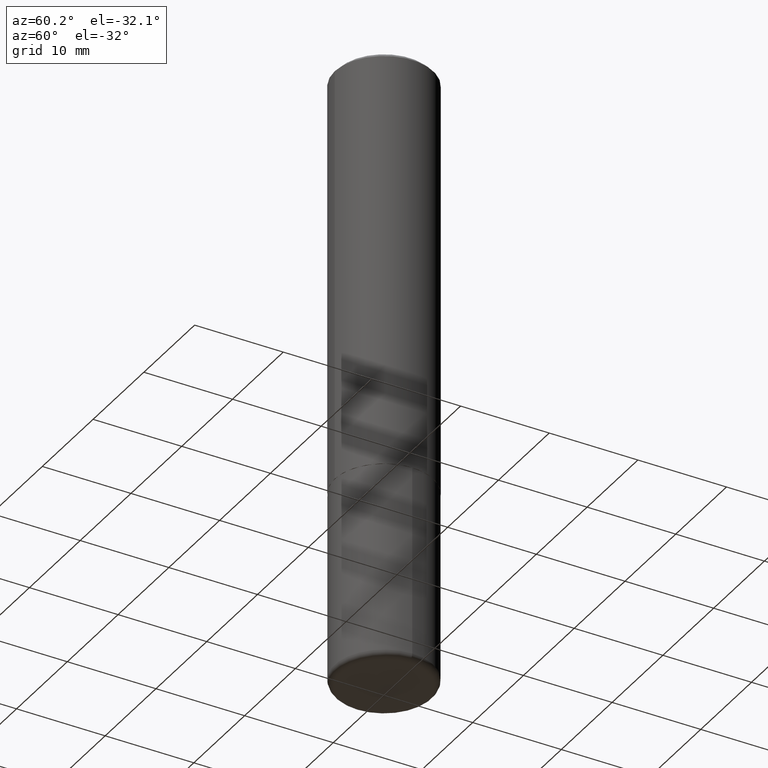
[diagram: clean part render]
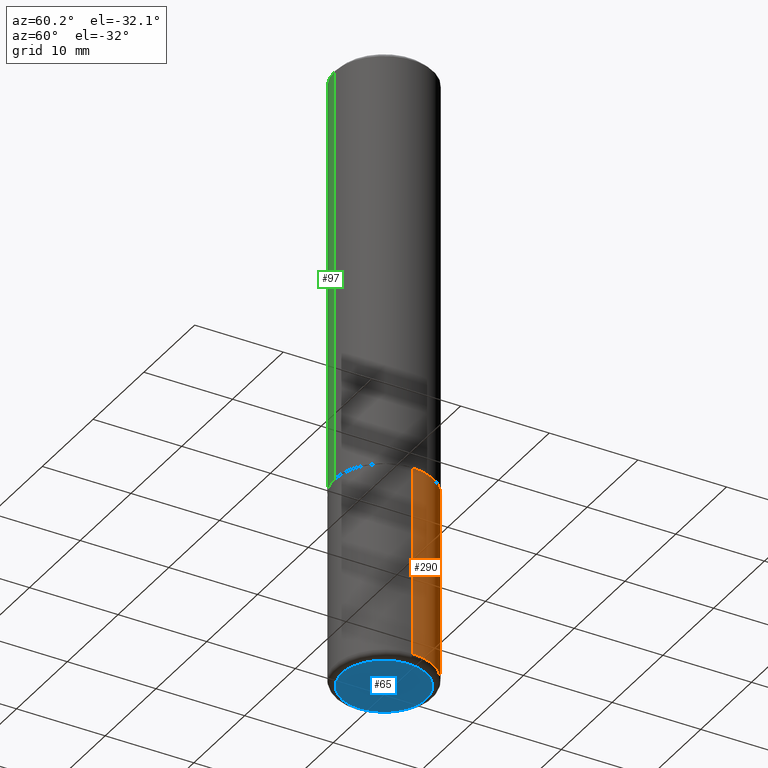
[diagram: same view with three faces highlighted in distinct colors, each labeled with its STEP entity id]
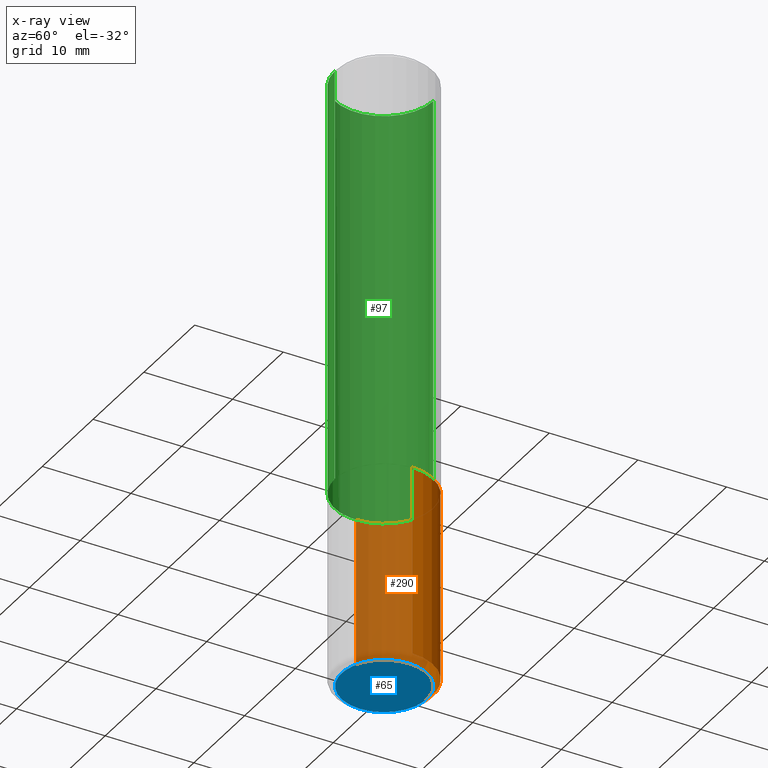
[diagram: x-ray of the same camera — body ghosted, the three highlighted faces saturated]
A machine part, auxiliary view with three faces highlighted in distinct colors.
The next image is the same camera in x-ray (body ghosted, the three faces saturated) — at least one of them is partly hidden behind the body in this view.
Their STEP definitions:

[orange] entity #290 — the highlighted cylindrical surface (partial cylindrical patch) has radius 5.5563 mm, axis along (-0, 0, 1).
#8 = EDGE_CURVE ( 'NONE', #292, #326, #172, .T. ) ;
#14 = VERTEX_POINT ( 'NONE', #371 ) ;
#38 = CARTESIAN_POINT ( 'NONE',  ( -0.2187500000000000000, -6.467366141516908442E-15, -1.875000000000000000 ) ) ;
#73 = CARTESIAN_POINT ( 'NONE',  ( 0.2187500000000000000, -8.074050596074770339E-15, -1.875000000000000000 ) ) ;
#103 = DIRECTION ( 'NONE',  ( 1.000000000000000000, -6.982962677686271444E-15, 0.000000000000000000 ) ) ;
#107 = DIRECTION ( 'NONE',  ( 1.000000000000000000, -6.982962677686266711E-15, 4.876176775795935232E-29 ) ) ;
#114 = ORIENTED_EDGE ( 'NONE', *, *, #225, .F. ) ;
#117 = CARTESIAN_POINT ( 'NONE',  ( 0.2187500000000000278, -1.527523085743871040E-15, 1.066663669705361025E-29 ) ) ;
#118 = CARTESIAN_POINT ( 'NONE',  ( 4.585254011597131119E-29, -6.546527510330898707E-15, -1.875000000000000000 ) ) ;
#141 = CARTESIAN_POINT ( 'NONE',  ( 6.651675152823572126E-29, -9.496829241653356490E-15, -2.719999999999999751 ) ) ;
#171 = CARTESIAN_POINT ( 'NONE',  ( -0.2187500000000000278, 1.554312234475219354E-15, -1.076017050993260762E-29 ) ) ;
#172 = LINE ( 'NONE', #117, #201 ) ;
#185 = EDGE_CURVE ( 'NONE', #292, #14, #343, .T. ) ;
#186 = ORIENTED_EDGE ( 'NONE', *, *, #259, .T. ) ;
#187 = AXIS2_PLACEMENT_3D ( 'NONE', #141, #390, #103 ) ;
#194 = ORIENTED_EDGE ( 'NONE', *, *, #185, .T. ) ;
#197 = VERTEX_POINT ( 'NONE', #38 ) ;
#201 = VECTOR ( 'NONE', #239, 39.37007874015748143 ) ;
#208 = LINE ( 'NONE', #171, #305 ) ;
#225 = EDGE_CURVE ( 'NONE', #326, #197, #255, .T. ) ;
#228 = CARTESIAN_POINT ( 'NONE',  ( 0.2187499999999998890, -1.102435232739722812E-14, -2.719999999999999751 ) ) ;
#237 = AXIS2_PLACEMENT_3D ( 'NONE', #118, #309, #364 ) ;
#238 = DIRECTION ( 'NONE',  ( -2.445468806185136877E-29, 3.491481338843145188E-15, 1.000000000000000000 ) ) ;
#239 = DIRECTION ( 'NONE',  ( -2.445468806185136877E-29, 3.491481338843145188E-15, 1.000000000000000000 ) ) ;
#255 = CIRCLE ( 'NONE', #237, 0.2187500000000000000 ) ;
#259 = EDGE_CURVE ( 'NONE', #14, #197, #208, .T. ) ;
#260 = CARTESIAN_POINT ( 'NONE',  ( 0.000000000000000000, 0.000000000000000000, 0.000000000000000000 ) ) ;
#266 = AXIS2_PLACEMENT_3D ( 'NONE', #260, #393, #107 ) ;
#290 = ADVANCED_FACE ( 'NONE', ( #381 ), #297, .T. ) ;
#292 = VERTEX_POINT ( 'NONE', #228 ) ;
#297 = CYLINDRICAL_SURFACE ( 'NONE', #266, 0.2187500000000000278 ) ;
#305 = VECTOR ( 'NONE', #238, 39.37007874015748143 ) ;
#309 = DIRECTION ( 'NONE',  ( -2.445468806185136597E-29, 3.491481338843145583E-15, 1.000000000000000000 ) ) ;
#326 = VERTEX_POINT ( 'NONE', #73 ) ;
#343 = CIRCLE ( 'NONE', #187, 0.2187500000000000278 ) ;
#354 = ORIENTED_EDGE ( 'NONE', *, *, #8, .F. ) ;
#364 = DIRECTION ( 'NONE',  ( 1.000000000000000000, -6.982962677686267499E-15, 0.000000000000000000 ) ) ;
#371 = CARTESIAN_POINT ( 'NONE',  ( -0.2187499999999998890, -7.942517007178138911E-15, -2.719999999999999751 ) ) ;
#381 = FACE_OUTER_BOUND ( 'NONE', #386, .T. ) ;
#386 = EDGE_LOOP ( 'NONE', ( #194, #186, #114, #354 ) ) ;
#390 = DIRECTION ( 'NONE',  ( -2.445468806185136597E-29, 3.491481338843145583E-15, 1.000000000000000000 ) ) ;
#393 = DIRECTION ( 'NONE',  ( -2.445468806185136597E-29, 3.491481338843145583E-15, 1.000000000000000000 ) ) ;

[blue] entity #65 — the highlighted planar face has unit normal (0, -0, -1).
#1 = AXIS2_PLACEMENT_3D ( 'NONE', #410, #306, #135 ) ;
#27 = EDGE_CURVE ( 'NONE', #78, #200, #58, .T. ) ;
#32 = CIRCLE ( 'NONE', #67, 0.1887500000000000011 ) ;
#51 = CARTESIAN_POINT ( 'NONE',  ( 0.1887500000000000011, -1.091960788723193160E-14, -2.749999999999999556 ) ) ;
#56 = DIRECTION ( 'NONE',  ( -2.445468806185136597E-29, 3.491481338843145583E-15, 1.000000000000000000 ) ) ;
#57 = PLANE ( 'NONE',  #1 ) ;
#58 = CIRCLE ( 'NONE', #360, 0.1887500000000000011 ) ;
#65 = ADVANCED_FACE ( 'NONE', ( #144 ), #57, .T. ) ;
#67 = AXIS2_PLACEMENT_3D ( 'NONE', #370, #56, #269 ) ;
#78 = VERTEX_POINT ( 'NONE', #51 ) ;
#80 = CARTESIAN_POINT ( 'NONE',  ( 6.725039217009123399E-29, -9.601573681818648281E-15, -2.749999999999999556 ) ) ;
#130 = ORIENTED_EDGE ( 'NONE', *, *, #416, .F. ) ;
#134 = ORIENTED_EDGE ( 'NONE', *, *, #27, .F. ) ;
#135 = DIRECTION ( 'NONE',  ( -1.000000000000000000, 6.982962677686265922E-15, -4.876176775795935793E-29 ) ) ;
#144 = FACE_OUTER_BOUND ( 'NONE', #391, .T. ) ;
#169 = DIRECTION ( 'NONE',  ( 1.000000000000000000, -6.982962677686272233E-15, 0.000000000000000000 ) ) ;
#200 = VERTEX_POINT ( 'NONE', #226 ) ;
#202 = DIRECTION ( 'NONE',  ( -2.445468806185136597E-29, 3.491481338843145583E-15, 1.000000000000000000 ) ) ;
#226 = CARTESIAN_POINT ( 'NONE',  ( -0.1887500000000000011, -8.101470637624799929E-15, -2.749999999999999556 ) ) ;
#269 = DIRECTION ( 'NONE',  ( 1.000000000000000000, -6.982962677686272233E-15, 0.000000000000000000 ) ) ;
#306 = DIRECTION ( 'NONE',  ( 2.438088387897960049E-29, -3.491481338843145188E-15, -1.000000000000000000 ) ) ;
#360 = AXIS2_PLACEMENT_3D ( 'NONE', #80, #202, #169 ) ;
#370 = CARTESIAN_POINT ( 'NONE',  ( 6.725039217009123399E-29, -9.601573681818648281E-15, -2.749999999999999556 ) ) ;
#391 = EDGE_LOOP ( 'NONE', ( #134, #130 ) ) ;
#410 = CARTESIAN_POINT ( 'NONE',  ( 1.228372314785856208E-28, -1.641221912200929740E-15, -2.750000000000000000 ) ) ;
#416 = EDGE_CURVE ( 'NONE', #200, #78, #32, .T. ) ;

[green] entity #97 — the highlighted cylindrical surface (partial cylindrical patch) has radius 5.5563 mm, axis along (-0, 0, 1).
#7 = CARTESIAN_POINT ( 'NONE',  ( 1.554312234475242822E-15, 0.2187499999999936440, -1.874000000000000776 ) ) ;
#11 = ORIENTED_EDGE ( 'NONE', *, *, #82, .F. ) ;
#19 = CARTESIAN_POINT ( 'NONE',  ( -1.500733937012521346E-15, -0.2187500000000000278, -0.01999999999999932734 ) ) ;
#21 = VERTEX_POINT ( 'NONE', #19 ) ;
#29 = DIRECTION ( 'NONE',  ( -2.445032622590504256E-29, 3.492105978576687648E-15, 1.000000000000000000 ) ) ;
#45 = DIRECTION ( 'NONE',  ( -2.445032622590504256E-29, 3.492105978576687648E-15, 1.000000000000000000 ) ) ;
#70 = VERTEX_POINT ( 'NONE', #334 ) ;
#81 = VERTEX_POINT ( 'NONE', #90 ) ;
#82 = EDGE_CURVE ( 'NONE', #356, #70, #346, .T. ) ;
#90 = CARTESIAN_POINT ( 'NONE',  ( -1.527523085743826075E-15, -0.2187500000000067446, -1.873999999999999222 ) ) ;
#97 = ADVANCED_FACE ( 'NONE', ( #394 ), #329, .T. ) ;
#99 = CARTESIAN_POINT ( 'NONE',  ( -1.527523085743871237E-15, -0.2187500000000000833, 7.638981828136507804E-16 ) ) ;
#100 = VECTOR ( 'NONE', #29, 39.37007874015748143 ) ;
#124 = AXIS2_PLACEMENT_3D ( 'NONE', #307, #45, #413 ) ;
#133 = DIRECTION ( 'NONE',  ( -6.982962677686265922E-15, -1.000000000000000000, 3.492105978576688042E-15 ) ) ;
#147 = CIRCLE ( 'NONE', #378, 0.2187499999999999445 ) ;
#150 = EDGE_CURVE ( 'NONE', #70, #21, #147, .T. ) ;
#156 = DIRECTION ( 'NONE',  ( -6.982962677686265922E-15, -1.000000000000000000, 3.492862791899308860E-15 ) ) ;
#158 = ORIENTED_EDGE ( 'NONE', *, *, #150, .F. ) ;
#196 = DIRECTION ( 'NONE',  ( -2.445032622590504256E-29, 3.492105978576687648E-15, 1.000000000000000000 ) ) ;
#231 = AXIS2_PLACEMENT_3D ( 'NONE', #366, #285, #133 ) ;
#236 = ORIENTED_EDGE ( 'NONE', *, *, #380, .T. ) ;
#252 = LINE ( 'NONE', #99, #409 ) ;
#261 = CARTESIAN_POINT ( 'NONE',  ( 4.890065245181030653E-31, -6.984211957153406209E-17, -0.02000000000000009062 ) ) ;
#285 = DIRECTION ( 'NONE',  ( -2.445032622590504256E-29, 3.492105978576687648E-15, 1.000000000000000000 ) ) ;
#307 = CARTESIAN_POINT ( 'NONE',  ( 4.581991134734604485E-29, -6.544206603852712761E-15, -1.874000000000000110 ) ) ;
#313 = CARTESIAN_POINT ( 'NONE',  ( 1.554312234475219551E-15, 0.2187500000000000833, -7.638981828136507804E-16 ) ) ;
#325 = CIRCLE ( 'NONE', #124, 0.2187500000000001943 ) ;
#329 = CYLINDRICAL_SURFACE ( 'NONE', #231, 0.2187500000000000833 ) ;
#333 = EDGE_LOOP ( 'NONE', ( #11, #236, #368, #158 ) ) ;
#334 = CARTESIAN_POINT ( 'NONE',  ( 1.527523085743870843E-15, 0.2187499999999998890, -0.02000000000000085390 ) ) ;
#346 = LINE ( 'NONE', #313, #100 ) ;
#351 = DIRECTION ( 'NONE',  ( -2.445032622590504256E-29, 3.492105978576687648E-15, 1.000000000000000000 ) ) ;
#353 = EDGE_CURVE ( 'NONE', #81, #21, #252, .T. ) ;
#356 = VERTEX_POINT ( 'NONE', #7 ) ;
#366 = CARTESIAN_POINT ( 'NONE',  ( 0.000000000000000000, 0.000000000000000000, 0.000000000000000000 ) ) ;
#368 = ORIENTED_EDGE ( 'NONE', *, *, #353, .T. ) ;
#378 = AXIS2_PLACEMENT_3D ( 'NONE', #261, #196, #156 ) ;
#380 = EDGE_CURVE ( 'NONE', #356, #81, #325, .T. ) ;
#394 = FACE_OUTER_BOUND ( 'NONE', #333, .T. ) ;
#409 = VECTOR ( 'NONE', #351, 39.37007874015748143 ) ;
#413 = DIRECTION ( 'NONE',  ( -6.982962677686265922E-15, -1.000000000000000000, 3.746534391310986401E-15 ) ) ;